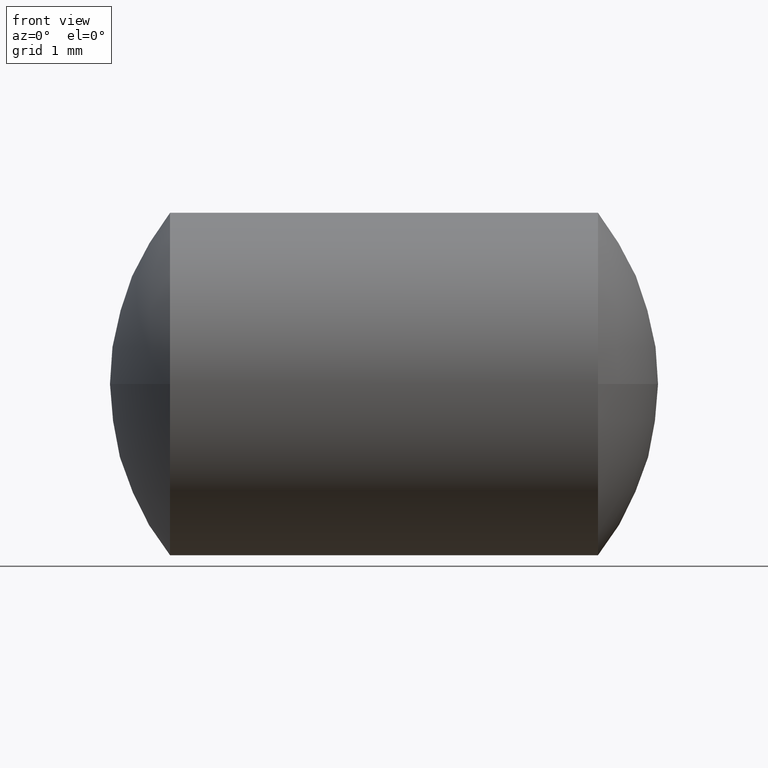
[diagram: clean part render]
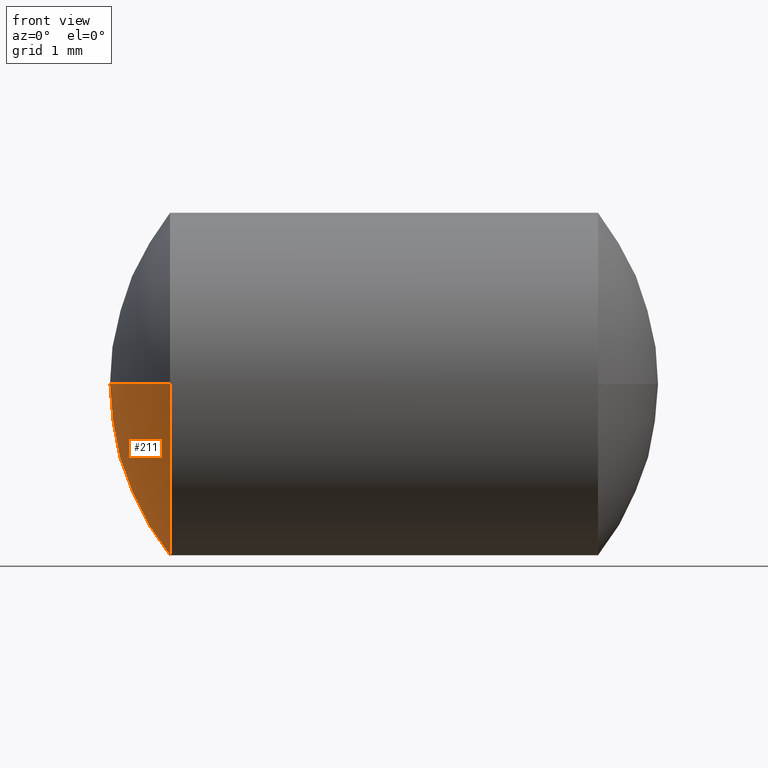
[diagram: same view with one face highlighted and labeled with its STEP entity id]
A machine part, front view. The second image highlights one B-rep face of the part: STEP entity #211.
In plain terms, the highlighted spherical surface has radius 4 mm.
Its self-contained STEP definition (entity closure, byte-faithful):
#21 = SPHERICAL_SURFACE ( 'NONE', #286, 4.000000000000003600 ) ;
#22 = EDGE_CURVE ( 'NONE', #209, #116, #279, .T. ) ;
#25 = EDGE_LOOP ( 'NONE', ( #131, #59, #233, #186 ) ) ;
#30 = DIRECTION ( 'NONE',  ( 0.0000000000000000000, 1.000000000000000000, 0.0000000000000000000 ) ) ;
#32 = CARTESIAN_POINT ( 'NONE',  ( -3.122904181920511700, 0.0000000000000000000, 0.0000000000000000000 ) ) ;
#40 = VERTEX_POINT ( 'NONE', #195 ) ;
#51 = DIRECTION ( 'NONE',  ( 0.0000000000000000000, 0.0000000000000000000, 1.000000000000000000 ) ) ;
#53 = DIRECTION ( 'NONE',  ( -0.0000000000000000000, 0.0000000000000000000, 1.000000000000000000 ) ) ;
#56 = DIRECTION ( 'NONE',  ( 0.0000000000000000000, 1.224646799147353200E-016, -1.000000000000000000 ) ) ;
#59 = ORIENTED_EDGE ( 'NONE', *, *, #270, .T. ) ;
#60 = DIRECTION ( 'NONE',  ( 0.0000000000000000000, 0.0000000000000000000, 1.000000000000000000 ) ) ;
#61 = AXIS2_PLACEMENT_3D ( 'NONE', #322, #56, #62 ) ;
#62 = DIRECTION ( 'NONE',  ( 0.0000000000000000000, 1.000000000000000000, 1.224646799147353500E-016 ) ) ;
#80 = DIRECTION ( 'NONE',  ( -0.0000000000000000000, 0.0000000000000000000, -1.000000000000000000 ) ) ;
#81 = DIRECTION ( 'NONE',  ( -1.000000000000000000, -0.0000000000000000000, -0.0000000000000000000 ) ) ;
#85 = CIRCLE ( 'NONE', #221, 2.499493842869673800 ) ;
#87 = EDGE_CURVE ( 'NONE', #209, #40, #190, .T. ) ;
#116 = VERTEX_POINT ( 'NONE', #317 ) ;
#131 = ORIENTED_EDGE ( 'NONE', *, *, #22, .T. ) ;
#140 = DIRECTION ( 'NONE',  ( 1.000000000000000000, 0.0000000000000000000, 0.0000000000000000000 ) ) ;
#146 = CARTESIAN_POINT ( 'NONE',  ( -3.122904181920511700, 0.0000000000000000000, 0.0000000000000000000 ) ) ;
#174 = CARTESIAN_POINT ( 'NONE',  ( 0.0000000000000000000, 0.0000000000000000000, 0.0000000000000000000 ) ) ;
#186 = ORIENTED_EDGE ( 'NONE', *, *, #87, .F. ) ;
#188 = EDGE_CURVE ( 'NONE', #203, #40, #232, .T. ) ;
#190 = CIRCLE ( 'NONE', #315, 4.000000000000003600 ) ;
#193 = CARTESIAN_POINT ( 'NONE',  ( -3.122904181920511700, 2.499493842869673400, 0.0000000000000000000 ) ) ;
#195 = CARTESIAN_POINT ( 'NONE',  ( -4.000000000000003600, 2.449293598294708900E-016, 0.0000000000000000000 ) ) ;
#203 = VERTEX_POINT ( 'NONE', #263 ) ;
#209 = VERTEX_POINT ( 'NONE', #193 ) ;
#211 = ADVANCED_FACE ( 'NONE', ( #275 ), #21, .T. ) ;
#221 = AXIS2_PLACEMENT_3D ( 'NONE', #32, #81, #60 ) ;
#226 = CARTESIAN_POINT ( 'NONE',  ( 0.0000000000000000000, 0.0000000000000000000, 0.0000000000000000000 ) ) ;
#231 = DIRECTION ( 'NONE',  ( -1.000000000000000000, -0.0000000000000000000, -0.0000000000000000000 ) ) ;
#232 = CIRCLE ( 'NONE', #61, 4.000000000000003600 ) ;
#233 = ORIENTED_EDGE ( 'NONE', *, *, #188, .T. ) ;
#251 = AXIS2_PLACEMENT_3D ( 'NONE', #146, #231, #51 ) ;
#263 = CARTESIAN_POINT ( 'NONE',  ( -3.122904181920511700, -2.499493842869673400, -3.060997134158862800E-016 ) ) ;
#270 = EDGE_CURVE ( 'NONE', #116, #203, #85, .T. ) ;
#275 = FACE_OUTER_BOUND ( 'NONE', #25, .T. ) ;
#279 = CIRCLE ( 'NONE', #251, 2.499493842869673800 ) ;
#286 = AXIS2_PLACEMENT_3D ( 'NONE', #174, #80, #30 ) ;
#315 = AXIS2_PLACEMENT_3D ( 'NONE', #226, #53, #140 ) ;
#317 = CARTESIAN_POINT ( 'NONE',  ( -3.122904181920511700, 3.060997134158863800E-016, -2.499493842869673800 ) ) ;
#322 = CARTESIAN_POINT ( 'NONE',  ( 0.0000000000000000000, 0.0000000000000000000, 0.0000000000000000000 ) ) ;